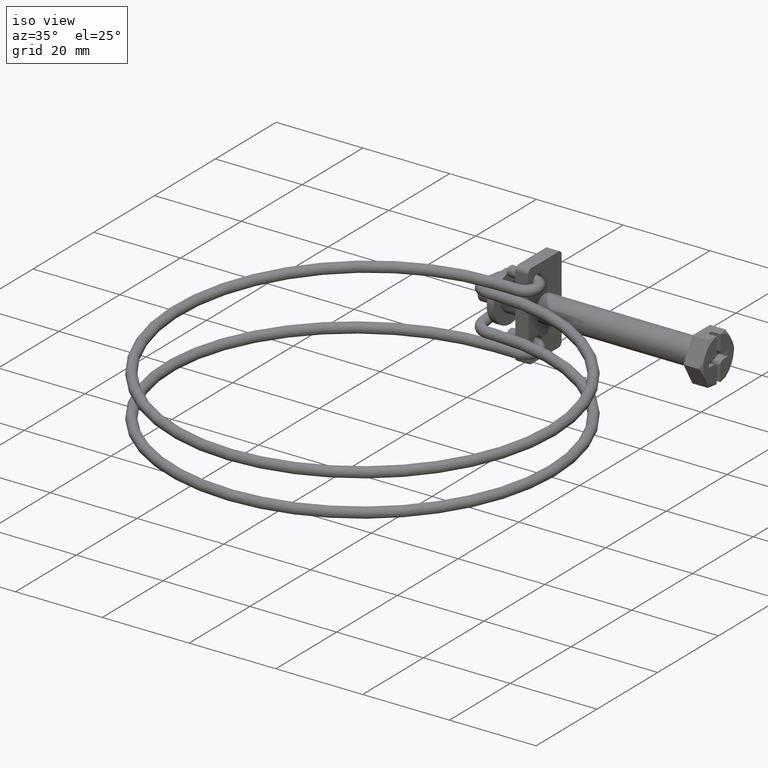
[diagram: clean part render]
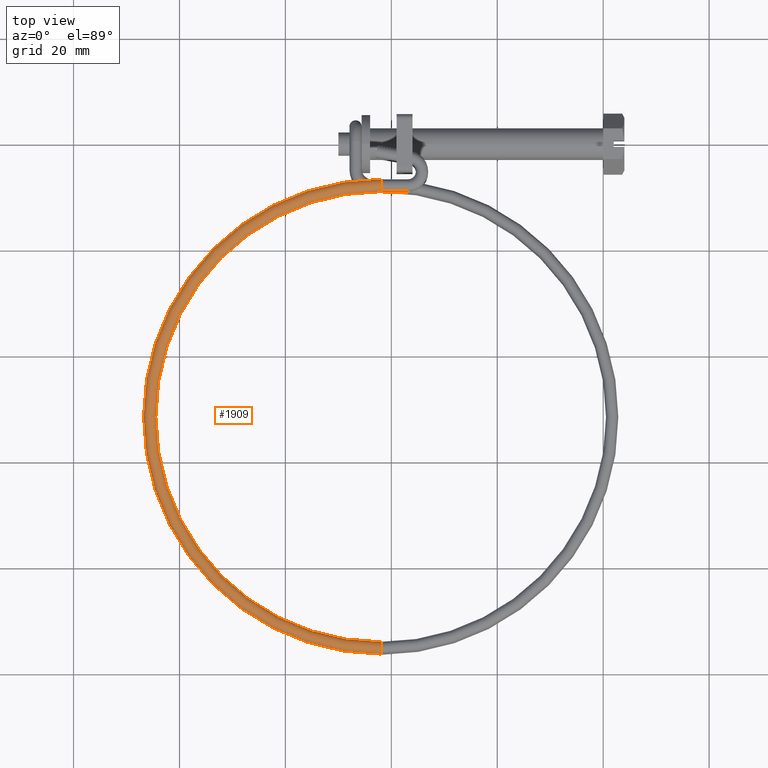
[diagram: tour spotlight — one face highlighted and labeled with its STEP entity id]
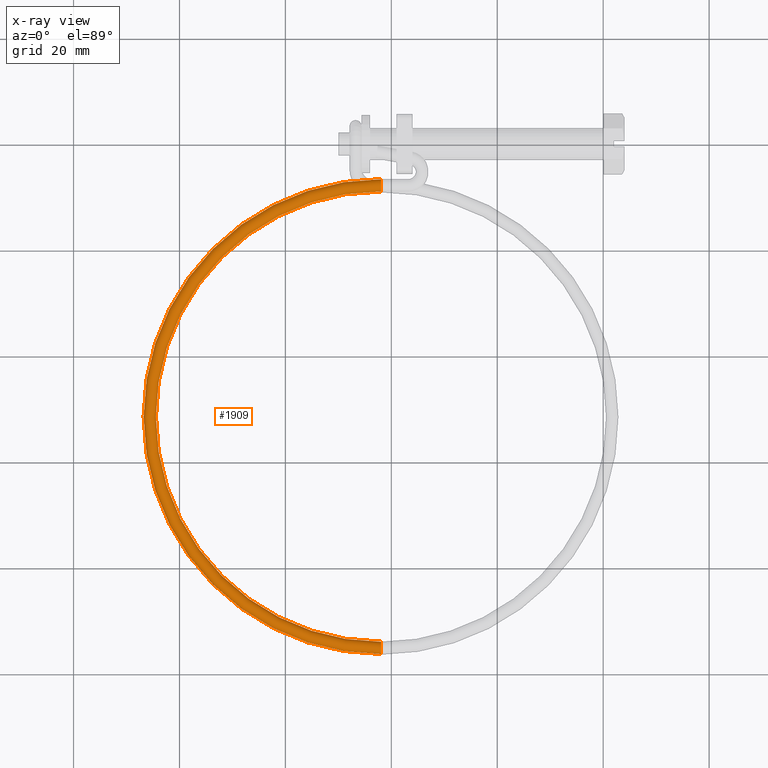
[diagram: x-ray of the same camera — body ghosted, this tour face saturated]
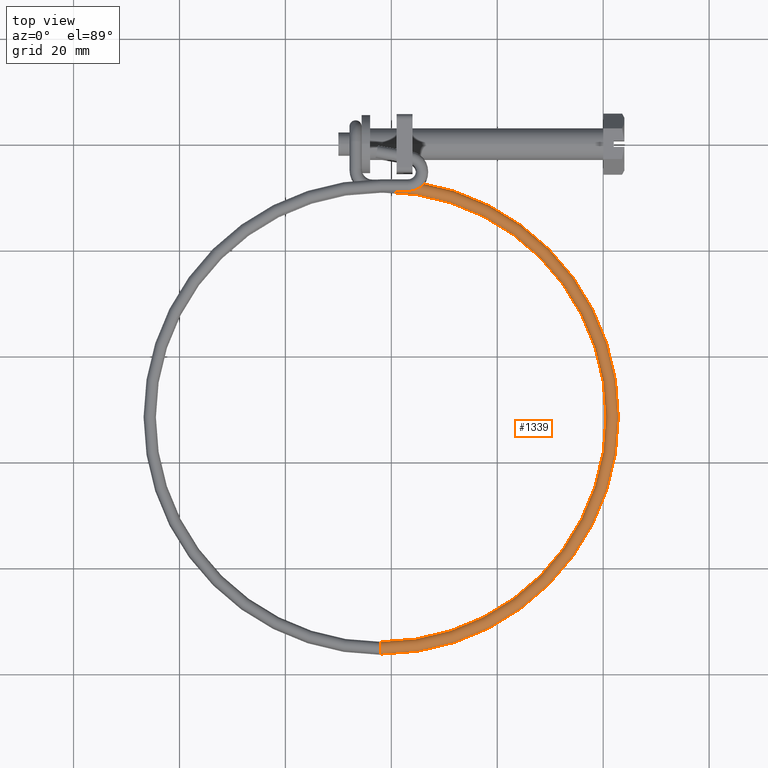
[diagram: tour spotlight — one face highlighted and labeled with its STEP entity id]
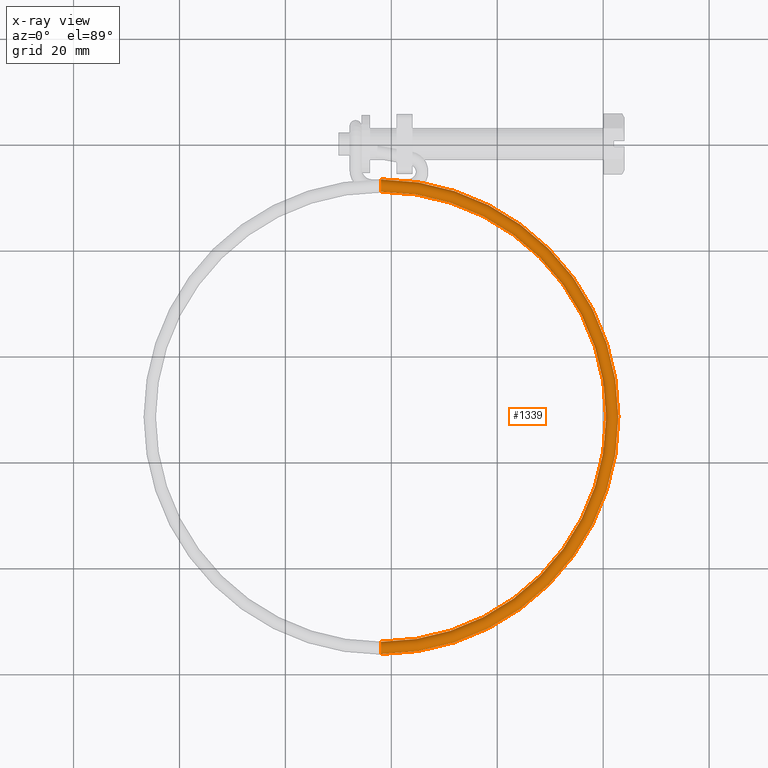
[diagram: x-ray of the same camera — body ghosted, this tour face saturated]
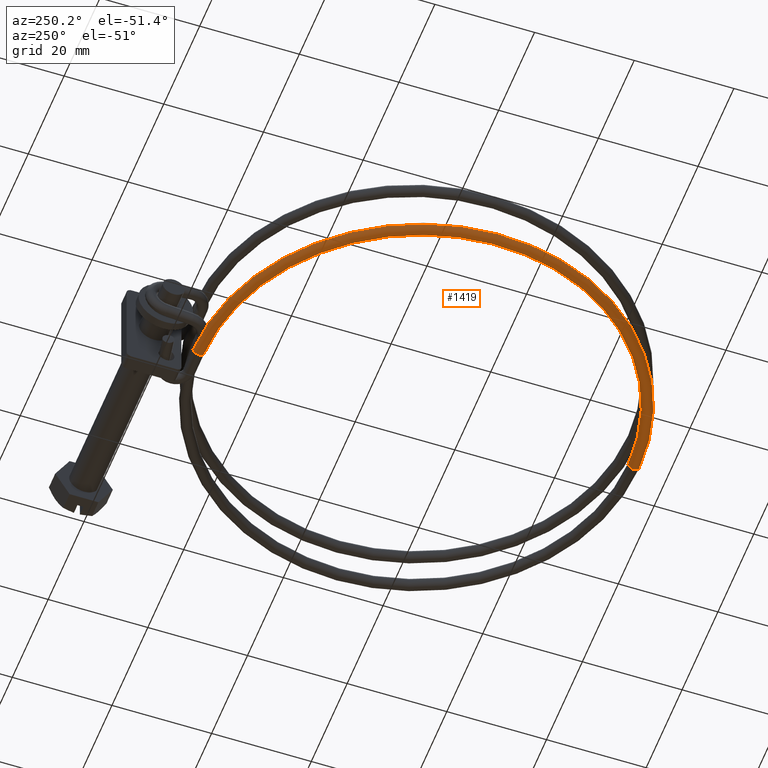
[diagram: tour spotlight — one face highlighted and labeled with its STEP entity id]
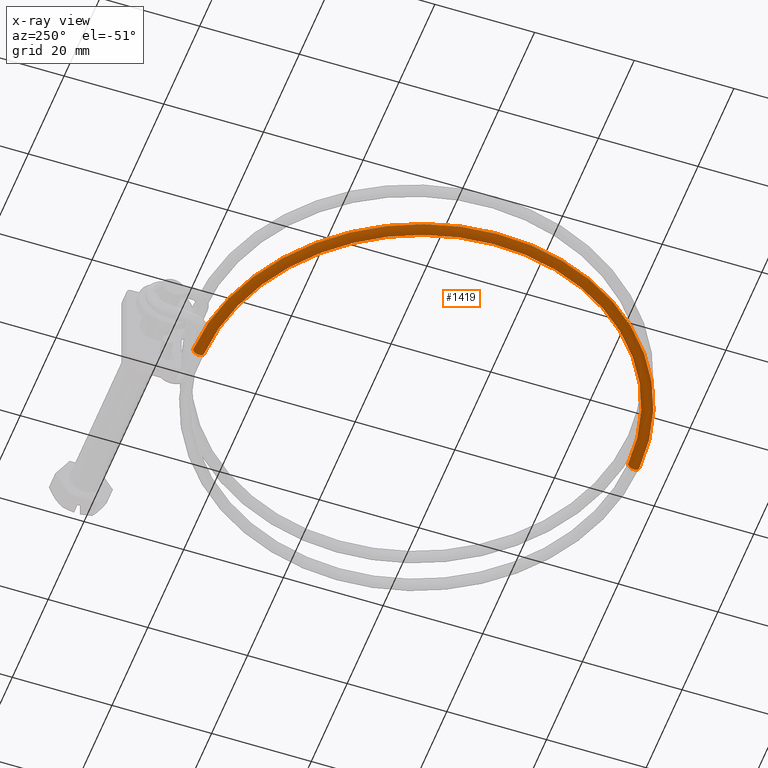
[diagram: x-ray of the same camera — body ghosted, this tour face saturated]
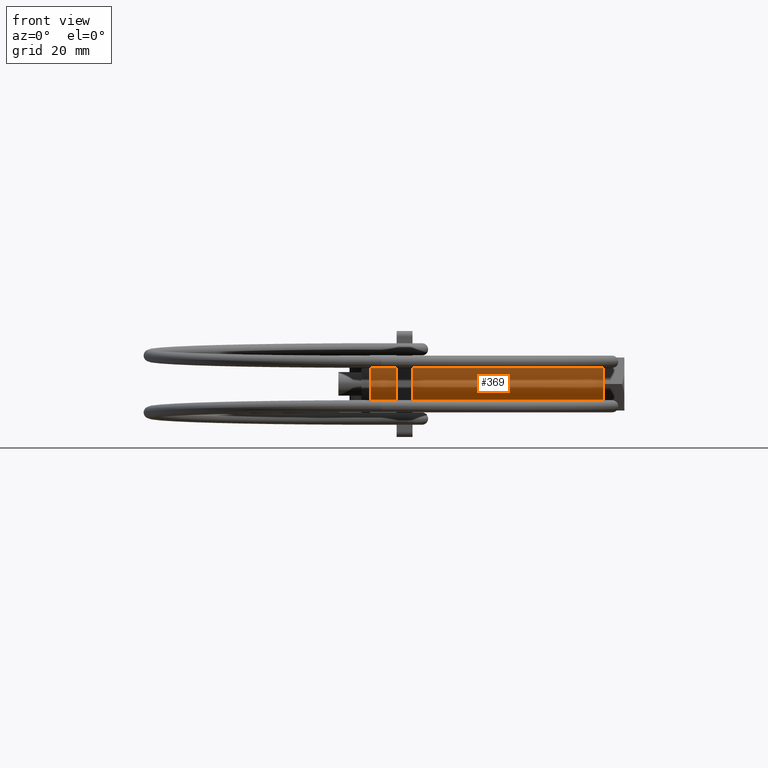
[diagram: tour spotlight — one face highlighted and labeled with its STEP entity id]
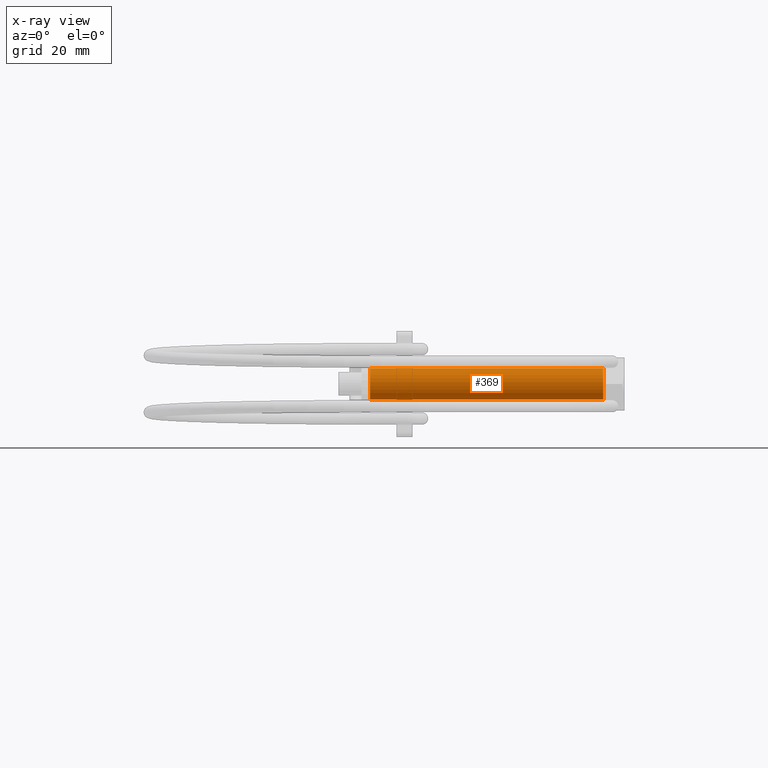
[diagram: x-ray of the same camera — body ghosted, this tour face saturated]
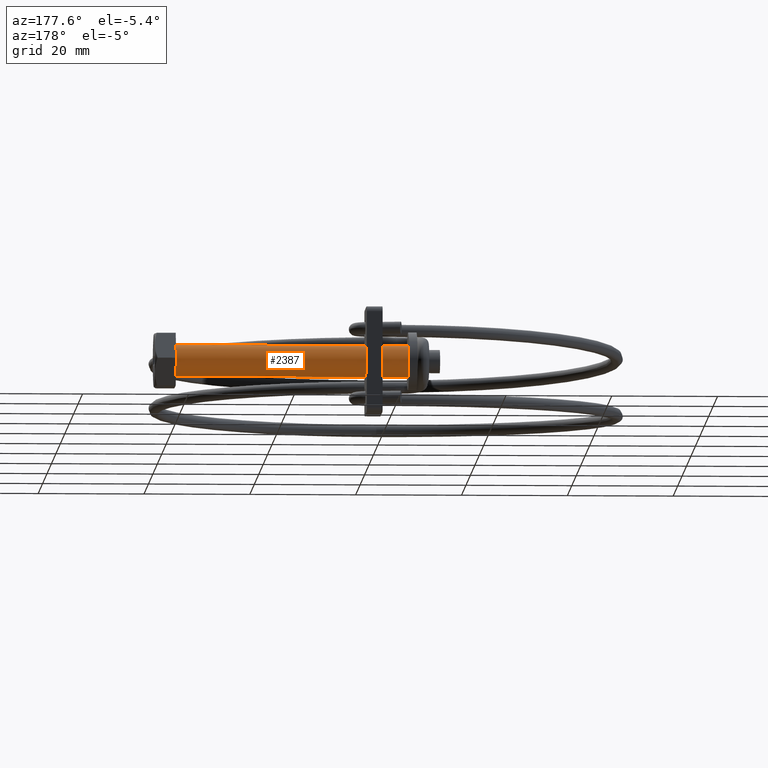
[diagram: tour spotlight — one face highlighted and labeled with its STEP entity id]
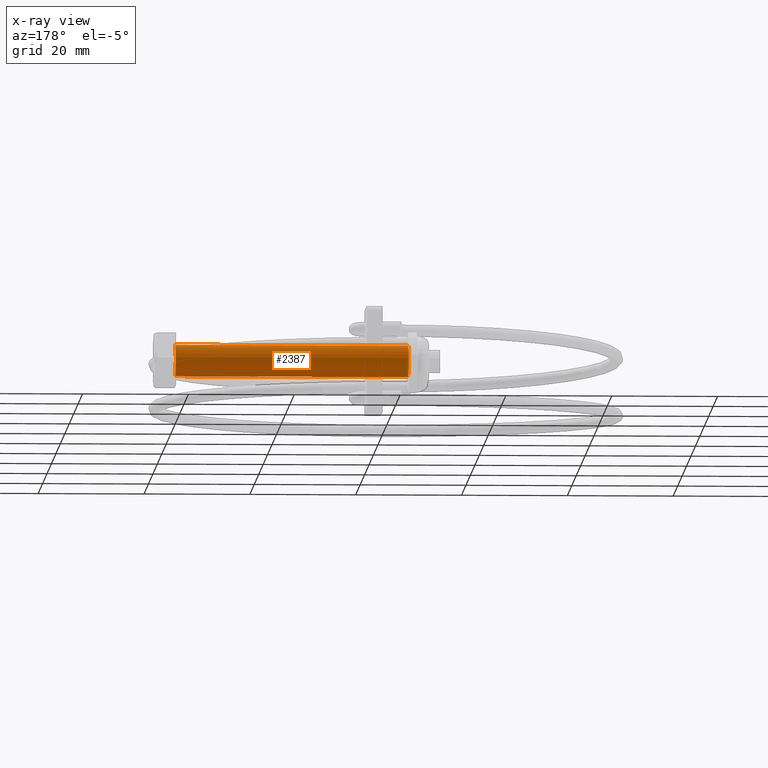
[diagram: x-ray of the same camera — body ghosted, this tour face saturated]
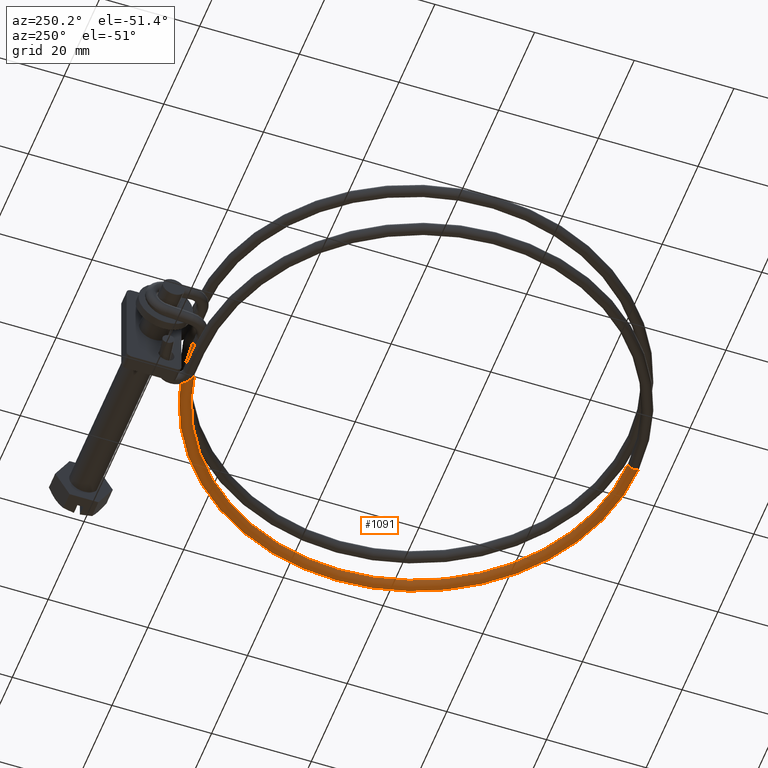
[diagram: tour spotlight — one face highlighted and labeled with its STEP entity id]
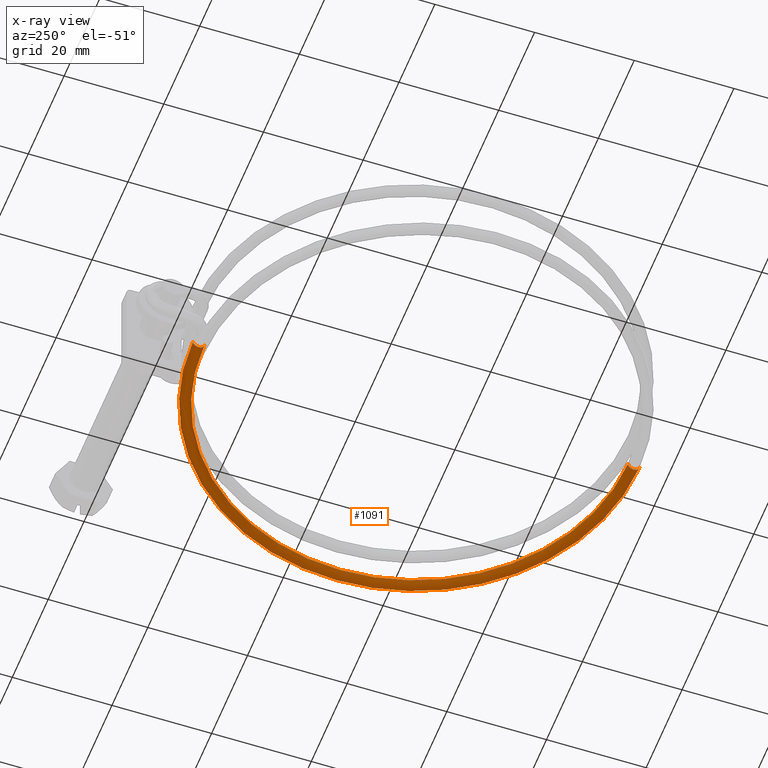
[diagram: x-ray of the same camera — body ghosted, this tour face saturated]
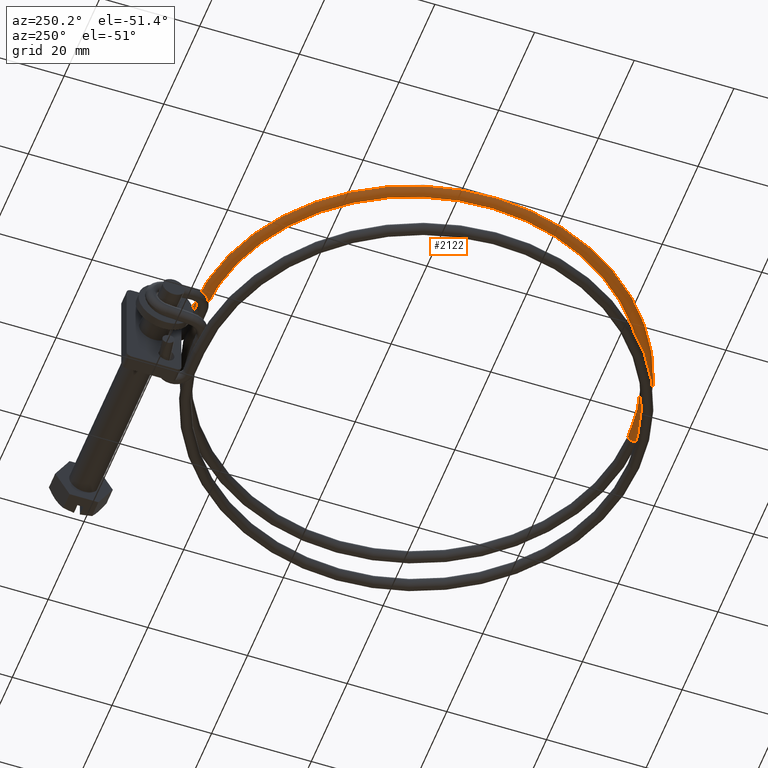
[diagram: tour spotlight — one face highlighted and labeled with its STEP entity id]
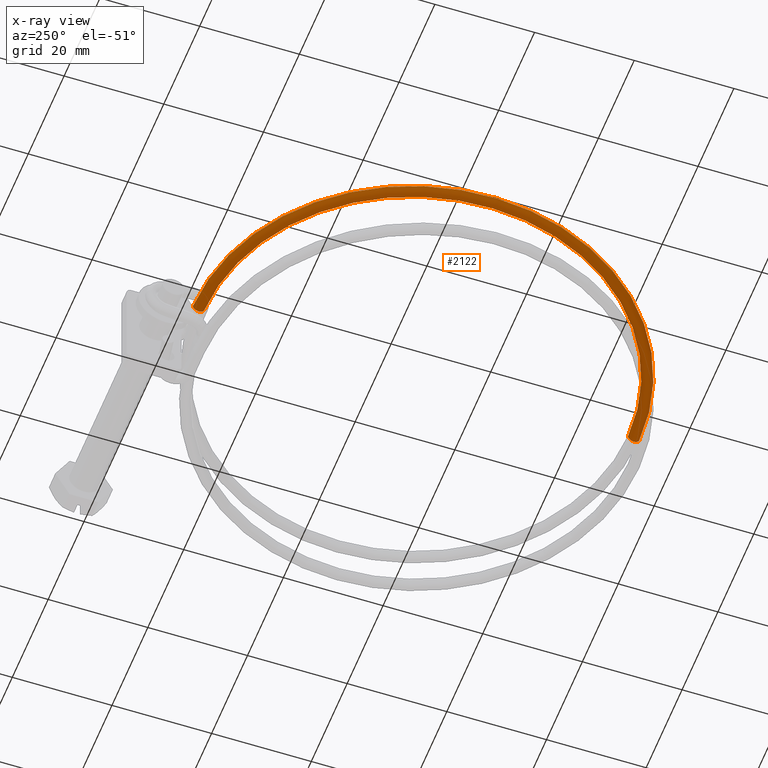
[diagram: x-ray of the same camera — body ghosted, this tour face saturated]
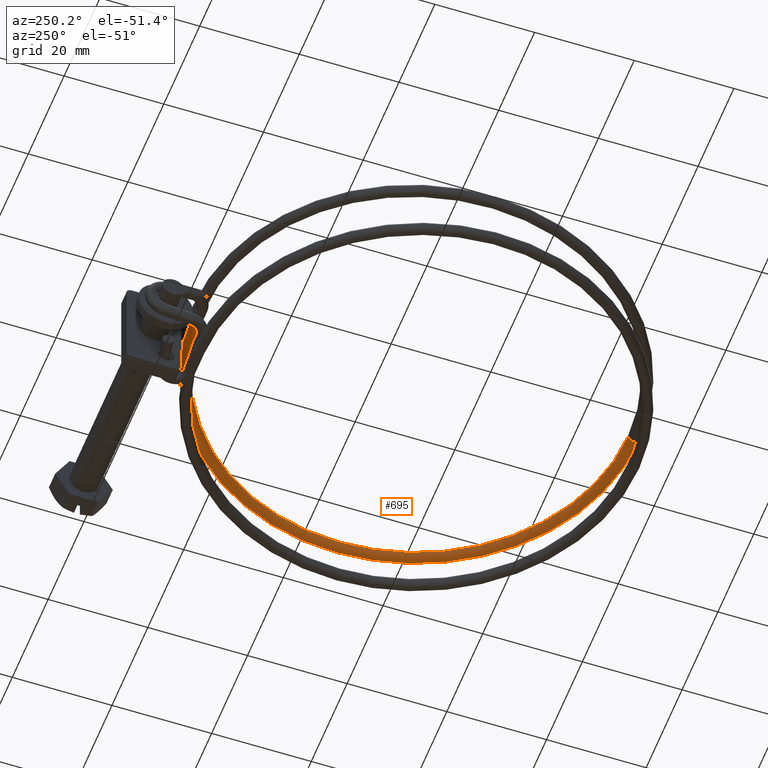
[diagram: tour spotlight — one face highlighted and labeled with its STEP entity id]
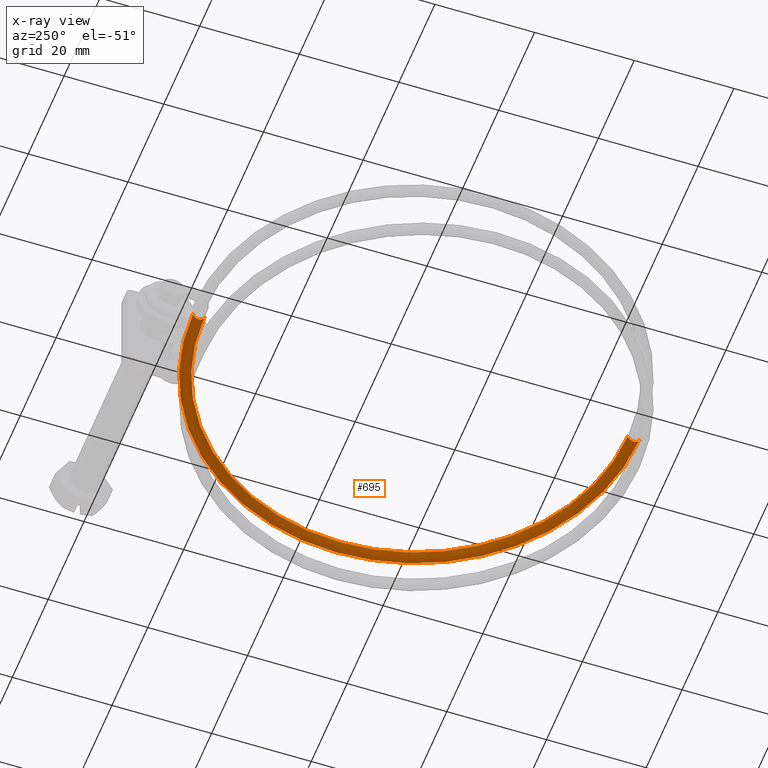
[diagram: x-ray of the same camera — body ghosted, this tour face saturated]
A machine part: a face-by-face anatomy tour. The part has 95 B-rep faces; the first image is the clean iso view, then the 8 largest visible faces are spotlighted one at a time (largest first), each with its STEP entity span.

Face 1 — top view, entity #1909. An x-ray twin of the same camera follows (body ghosted, this face saturated) — the face is partly hidden behind the body. In plain terms, the highlighted toroidal blend (fillet) surface has major radius 43.6658 mm and minor (blend) radius 1.15 mm.
Definition (entity closure, byte-faithful):
#76 = VERTEX_POINT ( 'NONE', #1070 ) ;
#77 = DIRECTION ( 'NONE',  ( 1.000000000000000000, 8.502678992173102500E-016, -7.836559837725485300E-016 ) ) ;
#78 = ORIENTED_EDGE ( 'NONE', *, *, #783, .T. ) ;
#133 = VERTEX_POINT ( 'NONE', #1367 ) ;
#217 = DIRECTION ( 'NONE',  ( 1.508455196501577500E-014, -0.9945218953682732900, -0.1045284632676544400 ) ) ;
#271 = EDGE_CURVE ( 'NONE', #1682, #76, #2416, .T. ) ;
#339 = AXIS2_PLACEMENT_3D ( 'NONE', #2774, #1304, #3021 ) ;
#349 = EDGE_CURVE ( 'NONE', #1682, #133, #1111, .T. ) ;
#563 = AXIS2_PLACEMENT_3D ( 'NONE', #3144, #1704, #217 ) ;
#626 = ORIENTED_EDGE ( 'NONE', *, *, #2870, .F. ) ;
#701 = FACE_OUTER_BOUND ( 'NONE', #2929, .T. ) ;
#734 = CIRCLE ( 'NONE', #339, 1.149999999999995500 ) ;
#765 = DIRECTION ( 'NONE',  ( -0.0000000000000000000, 0.02690892371103315400, -0.9996378893502956300 ) ) ;
#783 = EDGE_CURVE ( 'NONE', #1759, #2678, #1888, .T. ) ;
#867 = EDGE_CURVE ( 'NONE', #2881, #2678, #2392, .T. ) ;
#925 = CARTESIAN_POINT ( 'NONE',  ( 4.795899999999999600, -51.56164372549101000, 5.375000000000000900 ) ) ;
#926 = CARTESIAN_POINT ( 'NONE',  ( 4.795899999999999600, -51.56164372549101000, 5.375000000000000900 ) ) ;
#974 = ORIENTED_EDGE ( 'NONE', *, *, #3163, .T. ) ;
#1070 = CARTESIAN_POINT ( 'NONE',  ( 4.795900000000609800, -6.762060152738176700, 6.580945262267689200 ) ) ;
#1111 = CIRCLE ( 'NONE', #563, 1.149999999999995500 ) ;
#1181 = DIRECTION ( 'NONE',  ( 0.0000000000000000000, 0.9996378893502956300, 0.02690892371103315400 ) ) ;
#1183 = DIRECTION ( 'NONE',  ( 0.0000000000000000000, 0.9996378893502956300, 0.02690892371103315000 ) ) ;
#1304 = DIRECTION ( 'NONE',  ( -1.000000000000000000, -1.489016563090529400E-014, -1.207367539279857700E-015 ) ) ;
#1359 = TOROIDAL_SURFACE ( 'NONE', #1435, 43.66581185550085600, 1.149999999999999900 ) ;
#1367 = CARTESIAN_POINT ( 'NONE',  ( 4.795900000000020900, -96.36164372549099300, 4.200000000000001100 ) ) ;
#1378 = CARTESIAN_POINT ( 'NONE',  ( 4.795900000000610700, -7.911643725491010100, 6.550000000000000700 ) ) ;
#1435 = AXIS2_PLACEMENT_3D ( 'NONE', #2488, #765, #2982 ) ;
#1436 = AXIS2_PLACEMENT_3D ( 'NONE', #1378, #3093, #1629 ) ;
#1530 = CARTESIAN_POINT ( 'NONE',  ( 4.795900000000610700, -7.911643725491010100, 6.550000000000000700 ) ) ;
#1604 = AXIS2_PLACEMENT_3D ( 'NONE', #1530, #77, #1780 ) ;
#1629 = DIRECTION ( 'NONE',  ( -7.542275982507857100E-016, 0.9987051081362557900, -0.05087344083654696300 ) ) ;
#1682 = VERTEX_POINT ( 'NONE', #2449 ) ;
#1704 = DIRECTION ( 'NONE',  ( -1.000000000000000000, -1.489016563090529400E-014, -1.207367539279857700E-015 ) ) ;
#1750 = ORIENTED_EDGE ( 'NONE', *, *, #271, .F. ) ;
#1759 = VERTEX_POINT ( 'NONE', #2475 ) ;
#1780 = DIRECTION ( 'NONE',  ( -7.542275982507857100E-016, 0.9987051081362557900, -0.05087344083654696300 ) ) ;
#1854 = ORIENTED_EDGE ( 'NONE', *, *, #349, .T. ) ;
#1888 = CIRCLE ( 'NONE', #2964, 42.51581185550085700 ) ;
#1909 = ADVANCED_FACE ( 'NONE', ( #701 ), #1359, .T. ) ;
#2392 = CIRCLE ( 'NONE', #1436, 1.149999999999999900 ) ;
#2416 = CIRCLE ( 'NONE', #2934, 44.81581185550085400 ) ;
#2449 = CARTESIAN_POINT ( 'NONE',  ( 4.795900000000021800, -96.36122729824384700, 4.169054737732314400 ) ) ;
#2475 = CARTESIAN_POINT ( 'NONE',  ( 4.795899999999987200, -94.06206015273815500, 4.230945262267690400 ) ) ;
#2476 = CIRCLE ( 'NONE', #1604, 1.149999999999999900 ) ;
#2488 = CARTESIAN_POINT ( 'NONE',  ( 4.795899999999999600, -51.56164372549101000, 5.375000000000000900 ) ) ;
#2612 = ORIENTED_EDGE ( 'NONE', *, *, #867, .F. ) ;
#2634 = CARTESIAN_POINT ( 'NONE',  ( 4.795900000000611600, -9.061227298243855100, 6.519054737732312300 ) ) ;
#2650 = DIRECTION ( 'NONE',  ( -0.0000000000000000000, 0.02690892371103315400, -0.9996378893502956300 ) ) ;
#2651 = DIRECTION ( 'NONE',  ( -0.0000000000000000000, 0.02690892371103315400, -0.9996378893502956300 ) ) ;
#2678 = VERTEX_POINT ( 'NONE', #2634 ) ;
#2769 = CARTESIAN_POINT ( 'NONE',  ( 4.795900000000611600, -7.911643725491010100, 7.700000000000000200 ) ) ;
#2774 = CARTESIAN_POINT ( 'NONE',  ( 4.795900000000004900, -95.21164372549100100, 4.200000000000001100 ) ) ;
#2870 = EDGE_CURVE ( 'NONE', #76, #2881, #2476, .T. ) ;
#2881 = VERTEX_POINT ( 'NONE', #2769 ) ;
#2929 = EDGE_LOOP ( 'NONE', ( #1750, #1854, #974, #78, #2612, #626 ) ) ;
#2934 = AXIS2_PLACEMENT_3D ( 'NONE', #925, #2650, #1181 ) ;
#2964 = AXIS2_PLACEMENT_3D ( 'NONE', #926, #2651, #1183 ) ;
#2982 = DIRECTION ( 'NONE',  ( 0.0000000000000000000, 0.9996378893502956300, 0.02690892371103315000 ) ) ;
#3021 = DIRECTION ( 'NONE',  ( 1.508455196501577500E-014, -0.9945218953682732900, -0.1045284632676544400 ) ) ;
#3093 = DIRECTION ( 'NONE',  ( 1.000000000000000000, 8.502678992173102500E-016, -7.836559837725485300E-016 ) ) ;
#3144 = CARTESIAN_POINT ( 'NONE',  ( 4.795900000000004900, -95.21164372549100100, 4.200000000000001100 ) ) ;
#3163 = EDGE_CURVE ( 'NONE', #133, #1759, #734, .T. ) ;

Face 2 — top view, entity #1339. An x-ray twin of the same camera follows (body ghosted, this face saturated) — the face is partly hidden behind the body. In plain terms, the highlighted toroidal blend (fillet) surface has major radius 43.65 mm and minor (blend) radius 1.15 mm.
Definition (entity closure, byte-faithful):
#71 = AXIS2_PLACEMENT_3D ( 'NONE', #1552, #100, #1796 ) ;
#100 = DIRECTION ( 'NONE',  ( -1.000000000000000000, -1.489016563090529400E-014, -1.207367539279857700E-015 ) ) ;
#133 = VERTEX_POINT ( 'NONE', #1367 ) ;
#138 = AXIS2_PLACEMENT_3D ( 'NONE', #1856, #397, #2091 ) ;
#188 = AXIS2_PLACEMENT_3D ( 'NONE', #1273, #1257, #2993 ) ;
#262 = ORIENTED_EDGE ( 'NONE', *, *, #821, .T. ) ;
#339 = AXIS2_PLACEMENT_3D ( 'NONE', #2774, #1304, #3021 ) ;
#365 = AXIS2_PLACEMENT_3D ( 'NONE', #2591, #1119, #2833 ) ;
#397 = DIRECTION ( 'NONE',  ( 1.000000000000000000, 1.476770095099055900E-014, -1.207367539279857700E-015 ) ) ;
#530 = CARTESIAN_POINT ( 'NONE',  ( 4.795900000000000500, -7.911643725490995000, 4.200000000000001100 ) ) ;
#669 = EDGE_LOOP ( 'NONE', ( #2460, #262, #1121, #2924, #2899, #2717 ) ) ;
#734 = CIRCLE ( 'NONE', #339, 1.149999999999995500 ) ;
#770 = DIRECTION ( 'NONE',  ( -1.508455196501571800E-014, 0.9945218953682732900, -0.1045284632676540700 ) ) ;
#821 = EDGE_CURVE ( 'NONE', #2747, #1159, #1814, .T. ) ;
#875 = CARTESIAN_POINT ( 'NONE',  ( 4.795899999999999600, -51.56164372549099500, 4.200000000000001100 ) ) ;
#1062 = EDGE_CURVE ( 'NONE', #2103, #1941, #1261, .T. ) ;
#1119 = DIRECTION ( 'NONE',  ( -0.0000000000000000000, -0.0000000000000000000, -1.000000000000000000 ) ) ;
#1121 = ORIENTED_EDGE ( 'NONE', *, *, #1798, .T. ) ;
#1129 = DIRECTION ( 'NONE',  ( -1.000000000000000000, 0.0000000000000000000, 0.0000000000000000000 ) ) ;
#1159 = VERTEX_POINT ( 'NONE', #2018 ) ;
#1164 = EDGE_CURVE ( 'NONE', #1759, #1941, #2996, .T. ) ;
#1257 = DIRECTION ( 'NONE',  ( -0.0000000000000000000, -0.0000000000000000000, -1.000000000000000000 ) ) ;
#1261 = CIRCLE ( 'NONE', #1926, 42.50000000000000000 ) ;
#1273 = CARTESIAN_POINT ( 'NONE',  ( 4.795899999999999600, -51.56164372549099500, 4.200000000000001100 ) ) ;
#1286 = CARTESIAN_POINT ( 'NONE',  ( 4.795899999999987200, -94.06164372549099500, 4.200000000000001100 ) ) ;
#1304 = DIRECTION ( 'NONE',  ( -1.000000000000000000, -1.489016563090529400E-014, -1.207367539279857700E-015 ) ) ;
#1309 = TOROIDAL_SURFACE ( 'NONE', #188, 43.64999999999999900, 1.149999999999999900 ) ;
#1339 = ADVANCED_FACE ( 'NONE', ( #1721 ), #1309, .T. ) ;
#1367 = CARTESIAN_POINT ( 'NONE',  ( 4.795900000000020900, -96.36164372549099300, 4.200000000000001100 ) ) ;
#1552 = CARTESIAN_POINT ( 'NONE',  ( 4.795900000000004900, -95.21164372549100100, 4.200000000000001100 ) ) ;
#1587 = CIRCLE ( 'NONE', #2641, 1.149999999999999700 ) ;
#1721 = FACE_OUTER_BOUND ( 'NONE', #669, .T. ) ;
#1759 = VERTEX_POINT ( 'NONE', #2475 ) ;
#1796 = DIRECTION ( 'NONE',  ( 1.508455196501577500E-014, -0.9945218953682732900, -0.1045284632676544400 ) ) ;
#1798 = EDGE_CURVE ( 'NONE', #1159, #2103, #1587, .T. ) ;
#1814 = CIRCLE ( 'NONE', #138, 1.149999999999999700 ) ;
#1856 = CARTESIAN_POINT ( 'NONE',  ( 4.795900000000000500, -7.911643725490995000, 4.200000000000001100 ) ) ;
#1926 = AXIS2_PLACEMENT_3D ( 'NONE', #875, #2596, #1129 ) ;
#1941 = VERTEX_POINT ( 'NONE', #1286 ) ;
#2018 = CARTESIAN_POINT ( 'NONE',  ( 4.795900000000002300, -7.911643725490995000, 5.350000000000001400 ) ) ;
#2020 = CARTESIAN_POINT ( 'NONE',  ( 4.795900000000018300, -9.061643725490995400, 4.200000000000001100 ) ) ;
#2091 = DIRECTION ( 'NONE',  ( -1.508455196501571800E-014, 0.9945218953682732900, -0.1045284632676540700 ) ) ;
#2103 = VERTEX_POINT ( 'NONE', #2020 ) ;
#2237 = DIRECTION ( 'NONE',  ( 1.000000000000000000, 1.476770095099055900E-014, -1.207367539279857700E-015 ) ) ;
#2421 = CARTESIAN_POINT ( 'NONE',  ( 4.795899999999982700, -6.761643725490996500, 4.200000000000001100 ) ) ;
#2460 = ORIENTED_EDGE ( 'NONE', *, *, #2559, .F. ) ;
#2475 = CARTESIAN_POINT ( 'NONE',  ( 4.795899999999987200, -94.06206015273815500, 4.230945262267690400 ) ) ;
#2559 = EDGE_CURVE ( 'NONE', #2747, #133, #2601, .T. ) ;
#2591 = CARTESIAN_POINT ( 'NONE',  ( 4.795899999999999600, -51.56164372549099500, 4.200000000000001100 ) ) ;
#2596 = DIRECTION ( 'NONE',  ( -0.0000000000000000000, -0.0000000000000000000, -1.000000000000000000 ) ) ;
#2601 = CIRCLE ( 'NONE', #365, 44.79999999999999700 ) ;
#2641 = AXIS2_PLACEMENT_3D ( 'NONE', #530, #2237, #770 ) ;
#2717 = ORIENTED_EDGE ( 'NONE', *, *, #3163, .F. ) ;
#2747 = VERTEX_POINT ( 'NONE', #2421 ) ;
#2774 = CARTESIAN_POINT ( 'NONE',  ( 4.795900000000004900, -95.21164372549100100, 4.200000000000001100 ) ) ;
#2833 = DIRECTION ( 'NONE',  ( -1.000000000000000000, 0.0000000000000000000, 0.0000000000000000000 ) ) ;
#2899 = ORIENTED_EDGE ( 'NONE', *, *, #1164, .F. ) ;
#2924 = ORIENTED_EDGE ( 'NONE', *, *, #1062, .T. ) ;
#2993 = DIRECTION ( 'NONE',  ( -1.000000000000000000, 0.0000000000000000000, 0.0000000000000000000 ) ) ;
#2996 = CIRCLE ( 'NONE', #71, 1.149999999999995500 ) ;
#3021 = DIRECTION ( 'NONE',  ( 1.508455196501577500E-014, -0.9945218953682732900, -0.1045284632676544400 ) ) ;
#3163 = EDGE_CURVE ( 'NONE', #133, #1759, #734, .T. ) ;

Face 3 — auxiliary view, entity #1419. An x-ray twin of the same camera follows (body ghosted, this face saturated) — the face is partly hidden behind the body. In plain terms, the highlighted toroidal blend (fillet) surface has major radius 43.6658 mm and minor (blend) radius 1.15 mm.
Definition (entity closure, byte-faithful):
#2 = AXIS2_PLACEMENT_3D ( 'NONE', #2212, #743, #2473 ) ;
#61 = AXIS2_PLACEMENT_3D ( 'NONE', #1067, #2788, #1320 ) ;
#82 = AXIS2_PLACEMENT_3D ( 'NONE', #1666, #216, #1913 ) ;
#93 = CARTESIAN_POINT ( 'NONE',  ( 4.795899999999999600, -51.56164372549101000, -5.375000000000000900 ) ) ;
#216 = DIRECTION ( 'NONE',  ( 1.000000000000000000, 1.489016563090529400E-014, -1.207367539279857700E-015 ) ) ;
#246 = CARTESIAN_POINT ( 'NONE',  ( 4.795900000000611600, -9.061227298243855100, -6.519054737732312300 ) ) ;
#274 = VERTEX_POINT ( 'NONE', #2151 ) ;
#280 = EDGE_CURVE ( 'NONE', #2587, #2522, #3070, .T. ) ;
#379 = CARTESIAN_POINT ( 'NONE',  ( 4.795899999999999600, -51.56164372549101000, -5.375000000000000900 ) ) ;
#517 = CARTESIAN_POINT ( 'NONE',  ( 4.795899999999987200, -94.06206015273815500, -4.230945262267690400 ) ) ;
#620 = DIRECTION ( 'NONE',  ( 0.0000000000000000000, 0.9996378893502956300, -0.02690892371103315400 ) ) ;
#637 = ORIENTED_EDGE ( 'NONE', *, *, #2125, .T. ) ;
#670 = AXIS2_PLACEMENT_3D ( 'NONE', #93, #1296, #1531 ) ;
#743 = DIRECTION ( 'NONE',  ( 1.000000000000000000, 1.489016563090529400E-014, -1.207367539279857700E-015 ) ) ;
#841 = DIRECTION ( 'NONE',  ( -1.000000000000000000, -8.502678992173102500E-016, -7.836559837725485300E-016 ) ) ;
#917 = FACE_OUTER_BOUND ( 'NONE', #985, .T. ) ;
#940 = AXIS2_PLACEMENT_3D ( 'NONE', #379, #2074, #620 ) ;
#985 = EDGE_LOOP ( 'NONE', ( #1412, #2576, #2761, #637, #2582, #2385 ) ) ;
#1009 = EDGE_CURVE ( 'NONE', #2587, #2241, #2721, .T. ) ;
#1067 = CARTESIAN_POINT ( 'NONE',  ( 4.795900000000610700, -7.911643725491010100, -6.550000000000000700 ) ) ;
#1185 = DIRECTION ( 'NONE',  ( -0.0000000000000000000, -0.02690892371103315400, -0.9996378893502956300 ) ) ;
#1208 = AXIS2_PLACEMENT_3D ( 'NONE', #2318, #841, #2568 ) ;
#1296 = DIRECTION ( 'NONE',  ( -0.0000000000000000000, -0.02690892371103315400, -0.9996378893502956300 ) ) ;
#1320 = DIRECTION ( 'NONE',  ( -7.542275982507857100E-016, 0.9987051081362557900, 0.05087344083654696300 ) ) ;
#1334 = CARTESIAN_POINT ( 'NONE',  ( 4.795900000000020900, -96.36164372549099300, -4.200000000000001100 ) ) ;
#1412 = ORIENTED_EDGE ( 'NONE', *, *, #280, .F. ) ;
#1419 = ADVANCED_FACE ( 'NONE', ( #917 ), #1582, .T. ) ;
#1465 = CIRCLE ( 'NONE', #61, 1.149999999999999900 ) ;
#1531 = DIRECTION ( 'NONE',  ( 0.0000000000000000000, 0.9996378893502956300, -0.02690892371103315000 ) ) ;
#1582 = TOROIDAL_SURFACE ( 'NONE', #670, 43.66581185550085600, 1.149999999999999900 ) ;
#1666 = CARTESIAN_POINT ( 'NONE',  ( 4.795900000000004900, -95.21164372549100100, -4.200000000000001100 ) ) ;
#1792 = VERTEX_POINT ( 'NONE', #517 ) ;
#1913 = DIRECTION ( 'NONE',  ( 1.508455196501577500E-014, -0.9945218953682732900, 0.1045284632676544400 ) ) ;
#1946 = CIRCLE ( 'NONE', #1208, 1.149999999999999900 ) ;
#2074 = DIRECTION ( 'NONE',  ( -0.0000000000000000000, -0.02690892371103315400, -0.9996378893502956300 ) ) ;
#2096 = CARTESIAN_POINT ( 'NONE',  ( 4.795900000000021800, -96.36122729824384700, -4.169054737732314400 ) ) ;
#2125 = EDGE_CURVE ( 'NONE', #274, #2985, #1465, .T. ) ;
#2132 = CIRCLE ( 'NONE', #2, 1.149999999999995500 ) ;
#2151 = CARTESIAN_POINT ( 'NONE',  ( 4.795900000000611600, -7.911643725491010100, -7.700000000000000200 ) ) ;
#2162 = EDGE_CURVE ( 'NONE', #2241, #274, #1946, .T. ) ;
#2196 = CIRCLE ( 'NONE', #2323, 42.51581185550085700 ) ;
#2212 = CARTESIAN_POINT ( 'NONE',  ( 4.795900000000004900, -95.21164372549100100, -4.200000000000001100 ) ) ;
#2241 = VERTEX_POINT ( 'NONE', #2350 ) ;
#2318 = CARTESIAN_POINT ( 'NONE',  ( 4.795900000000610700, -7.911643725491010100, -6.550000000000000700 ) ) ;
#2323 = AXIS2_PLACEMENT_3D ( 'NONE', #2655, #1185, #2904 ) ;
#2340 = EDGE_CURVE ( 'NONE', #2522, #1792, #2132, .T. ) ;
#2350 = CARTESIAN_POINT ( 'NONE',  ( 4.795900000000609800, -6.762060152738176700, -6.580945262267689200 ) ) ;
#2385 = ORIENTED_EDGE ( 'NONE', *, *, #2340, .F. ) ;
#2473 = DIRECTION ( 'NONE',  ( 1.508455196501577500E-014, -0.9945218953682732900, 0.1045284632676544400 ) ) ;
#2522 = VERTEX_POINT ( 'NONE', #1334 ) ;
#2568 = DIRECTION ( 'NONE',  ( -7.542275982507857100E-016, 0.9987051081362557900, 0.05087344083654696300 ) ) ;
#2576 = ORIENTED_EDGE ( 'NONE', *, *, #1009, .T. ) ;
#2582 = ORIENTED_EDGE ( 'NONE', *, *, #2694, .F. ) ;
#2587 = VERTEX_POINT ( 'NONE', #2096 ) ;
#2655 = CARTESIAN_POINT ( 'NONE',  ( 4.795899999999999600, -51.56164372549101000, -5.375000000000000900 ) ) ;
#2694 = EDGE_CURVE ( 'NONE', #1792, #2985, #2196, .T. ) ;
#2721 = CIRCLE ( 'NONE', #940, 44.81581185550085400 ) ;
#2761 = ORIENTED_EDGE ( 'NONE', *, *, #2162, .T. ) ;
#2788 = DIRECTION ( 'NONE',  ( -1.000000000000000000, -8.502678992173102500E-016, -7.836559837725485300E-016 ) ) ;
#2904 = DIRECTION ( 'NONE',  ( 0.0000000000000000000, 0.9996378893502956300, -0.02690892371103315000 ) ) ;
#2985 = VERTEX_POINT ( 'NONE', #246 ) ;
#3070 = CIRCLE ( 'NONE', #82, 1.149999999999995500 ) ;

Face 4 — front view, entity #369. An x-ray twin of the same camera follows (body ghosted, this face saturated) — the face is partly hidden behind the body. In plain terms, the highlighted cylindrical surface (edge-blend (fillet) strip) has radius 3 mm, axis along (1, 0, 0).
Definition (entity closure, byte-faithful):
#49 = DIRECTION ( 'NONE',  ( 1.000000000000000000, 0.0000000000000000000, 0.0000000000000000000 ) ) ;
#56 = EDGE_LOOP ( 'NONE', ( #2393, #2104, #2200, #445 ) ) ;
#293 = CIRCLE ( 'NONE', #2702, 3.000000000000000400 ) ;
#341 = AXIS2_PLACEMENT_3D ( 'NONE', #794, #2521, #1045 ) ;
#366 = CIRCLE ( 'NONE', #341, 3.000000000000000400 ) ;
#369 = ADVANCED_FACE ( 'NONE', ( #2918 ), #948, .T. ) ;
#381 = DIRECTION ( 'NONE',  ( 1.000000000000000000, -0.0000000000000000000, -0.0000000000000000000 ) ) ;
#411 = LINE ( 'NONE', #1747, #2262 ) ;
#426 = CARTESIAN_POINT ( 'NONE',  ( 0.0000000000000000000, 0.0000000000000000000, -3.000000000000000400 ) ) ;
#445 = ORIENTED_EDGE ( 'NONE', *, *, #1403, .F. ) ;
#662 = VERTEX_POINT ( 'NONE', #1727 ) ;
#794 = CARTESIAN_POINT ( 'NONE',  ( 0.0000000000000000000, 0.0000000000000000000, 0.0000000000000000000 ) ) ;
#933 = DIRECTION ( 'NONE',  ( 1.000000000000000000, 0.0000000000000000000, 0.0000000000000000000 ) ) ;
#948 = CYLINDRICAL_SURFACE ( 'NONE', #1551, 3.000000000000000400 ) ;
#1045 = DIRECTION ( 'NONE',  ( 0.0000000000000000000, 0.0000000000000000000, -1.000000000000000000 ) ) ;
#1313 = CARTESIAN_POINT ( 'NONE',  ( -44.00000000000000000, 0.0000000000000000000, -3.000000000000000400 ) ) ;
#1403 = EDGE_CURVE ( 'NONE', #662, #2640, #366, .T. ) ;
#1416 = CARTESIAN_POINT ( 'NONE',  ( -44.00000000000000000, 0.0000000000000000000, 0.0000000000000000000 ) ) ;
#1551 = AXIS2_PLACEMENT_3D ( 'NONE', #1416, #2403, #3131 ) ;
#1650 = VERTEX_POINT ( 'NONE', #2514 ) ;
#1727 = CARTESIAN_POINT ( 'NONE',  ( 0.0000000000000000000, 3.673940397442060400E-016, 3.000000000000000400 ) ) ;
#1747 = CARTESIAN_POINT ( 'NONE',  ( -44.00000000000000000, 3.673940397442060400E-016, 3.000000000000000400 ) ) ;
#1837 = CARTESIAN_POINT ( 'NONE',  ( -44.00000000000000000, 0.0000000000000000000, 0.0000000000000000000 ) ) ;
#2034 = EDGE_CURVE ( 'NONE', #1650, #662, #411, .T. ) ;
#2076 = DIRECTION ( 'NONE',  ( 0.0000000000000000000, 0.0000000000000000000, 1.000000000000000000 ) ) ;
#2104 = ORIENTED_EDGE ( 'NONE', *, *, #2539, .T. ) ;
#2200 = ORIENTED_EDGE ( 'NONE', *, *, #2723, .T. ) ;
#2262 = VECTOR ( 'NONE', #49, 1000.000000000000000 ) ;
#2393 = ORIENTED_EDGE ( 'NONE', *, *, #2034, .F. ) ;
#2403 = DIRECTION ( 'NONE',  ( 1.000000000000000000, 0.0000000000000000000, 0.0000000000000000000 ) ) ;
#2407 = CARTESIAN_POINT ( 'NONE',  ( -44.00000000000000000, 0.0000000000000000000, -3.000000000000000400 ) ) ;
#2514 = CARTESIAN_POINT ( 'NONE',  ( -44.00000000000000000, 3.673940397442060400E-016, 3.000000000000000400 ) ) ;
#2521 = DIRECTION ( 'NONE',  ( 1.000000000000000000, 0.0000000000000000000, 0.0000000000000000000 ) ) ;
#2539 = EDGE_CURVE ( 'NONE', #1650, #2947, #293, .T. ) ;
#2640 = VERTEX_POINT ( 'NONE', #426 ) ;
#2702 = AXIS2_PLACEMENT_3D ( 'NONE', #1837, #381, #2076 ) ;
#2723 = EDGE_CURVE ( 'NONE', #2947, #2640, #2868, .T. ) ;
#2787 = VECTOR ( 'NONE', #933, 1000.000000000000000 ) ;
#2868 = LINE ( 'NONE', #2407, #2787 ) ;
#2918 = FACE_OUTER_BOUND ( 'NONE', #56, .T. ) ;
#2947 = VERTEX_POINT ( 'NONE', #1313 ) ;
#3131 = DIRECTION ( 'NONE',  ( 0.0000000000000000000, 0.0000000000000000000, -1.000000000000000000 ) ) ;

Face 5 — auxiliary view, entity #2387. An x-ray twin of the same camera follows (body ghosted, this face saturated) — the face is partly hidden behind the body. In plain terms, the highlighted cylindrical surface (edge-blend (fillet) strip) has radius 3 mm, axis along (1, 0, 0).
Definition (entity closure, byte-faithful):
#49 = DIRECTION ( 'NONE',  ( 1.000000000000000000, 0.0000000000000000000, 0.0000000000000000000 ) ) ;
#146 = CIRCLE ( 'NONE', #1267, 3.000000000000000400 ) ;
#152 = CARTESIAN_POINT ( 'NONE',  ( -44.00000000000000000, 0.0000000000000000000, 0.0000000000000000000 ) ) ;
#389 = DIRECTION ( 'NONE',  ( 0.0000000000000000000, 0.0000000000000000000, 1.000000000000000000 ) ) ;
#411 = LINE ( 'NONE', #1747, #2262 ) ;
#426 = CARTESIAN_POINT ( 'NONE',  ( 0.0000000000000000000, 0.0000000000000000000, -3.000000000000000400 ) ) ;
#528 = CARTESIAN_POINT ( 'NONE',  ( -44.00000000000000000, 0.0000000000000000000, 0.0000000000000000000 ) ) ;
#576 = ORIENTED_EDGE ( 'NONE', *, *, #1024, .T. ) ;
#659 = EDGE_LOOP ( 'NONE', ( #576, #2836, #880, #2296 ) ) ;
#662 = VERTEX_POINT ( 'NONE', #1727 ) ;
#880 = ORIENTED_EDGE ( 'NONE', *, *, #2030, .F. ) ;
#933 = DIRECTION ( 'NONE',  ( 1.000000000000000000, 0.0000000000000000000, 0.0000000000000000000 ) ) ;
#1006 = CYLINDRICAL_SURFACE ( 'NONE', #1402, 3.000000000000000400 ) ;
#1012 = CARTESIAN_POINT ( 'NONE',  ( 0.0000000000000000000, 0.0000000000000000000, 0.0000000000000000000 ) ) ;
#1024 = EDGE_CURVE ( 'NONE', #2947, #1650, #146, .T. ) ;
#1267 = AXIS2_PLACEMENT_3D ( 'NONE', #152, #1849, #389 ) ;
#1268 = DIRECTION ( 'NONE',  ( 0.0000000000000000000, 0.0000000000000000000, -1.000000000000000000 ) ) ;
#1313 = CARTESIAN_POINT ( 'NONE',  ( -44.00000000000000000, 0.0000000000000000000, -3.000000000000000400 ) ) ;
#1402 = AXIS2_PLACEMENT_3D ( 'NONE', #528, #2236, #2715 ) ;
#1650 = VERTEX_POINT ( 'NONE', #2514 ) ;
#1727 = CARTESIAN_POINT ( 'NONE',  ( 0.0000000000000000000, 3.673940397442060400E-016, 3.000000000000000400 ) ) ;
#1747 = CARTESIAN_POINT ( 'NONE',  ( -44.00000000000000000, 3.673940397442060400E-016, 3.000000000000000400 ) ) ;
#1768 = CIRCLE ( 'NONE', #2418, 3.000000000000000400 ) ;
#1849 = DIRECTION ( 'NONE',  ( 1.000000000000000000, -0.0000000000000000000, -0.0000000000000000000 ) ) ;
#2030 = EDGE_CURVE ( 'NONE', #2640, #662, #1768, .T. ) ;
#2034 = EDGE_CURVE ( 'NONE', #1650, #662, #411, .T. ) ;
#2236 = DIRECTION ( 'NONE',  ( 1.000000000000000000, 0.0000000000000000000, 0.0000000000000000000 ) ) ;
#2262 = VECTOR ( 'NONE', #49, 1000.000000000000000 ) ;
#2296 = ORIENTED_EDGE ( 'NONE', *, *, #2723, .F. ) ;
#2387 = ADVANCED_FACE ( 'NONE', ( #2973 ), #1006, .T. ) ;
#2407 = CARTESIAN_POINT ( 'NONE',  ( -44.00000000000000000, 0.0000000000000000000, -3.000000000000000400 ) ) ;
#2418 = AXIS2_PLACEMENT_3D ( 'NONE', #1012, #2738, #1268 ) ;
#2514 = CARTESIAN_POINT ( 'NONE',  ( -44.00000000000000000, 3.673940397442060400E-016, 3.000000000000000400 ) ) ;
#2640 = VERTEX_POINT ( 'NONE', #426 ) ;
#2715 = DIRECTION ( 'NONE',  ( 0.0000000000000000000, 0.0000000000000000000, -1.000000000000000000 ) ) ;
#2723 = EDGE_CURVE ( 'NONE', #2947, #2640, #2868, .T. ) ;
#2738 = DIRECTION ( 'NONE',  ( 1.000000000000000000, 0.0000000000000000000, 0.0000000000000000000 ) ) ;
#2787 = VECTOR ( 'NONE', #933, 1000.000000000000000 ) ;
#2836 = ORIENTED_EDGE ( 'NONE', *, *, #2034, .T. ) ;
#2868 = LINE ( 'NONE', #2407, #2787 ) ;
#2947 = VERTEX_POINT ( 'NONE', #1313 ) ;
#2973 = FACE_OUTER_BOUND ( 'NONE', #659, .T. ) ;

Face 6 — auxiliary view, entity #1091. An x-ray twin of the same camera follows (body ghosted, this face saturated) — the face is partly hidden behind the body. In plain terms, the highlighted toroidal blend (fillet) surface has major radius 43.65 mm and minor (blend) radius 1.15 mm.
Definition (entity closure, byte-faithful):
#2 = AXIS2_PLACEMENT_3D ( 'NONE', #2212, #743, #2473 ) ;
#57 = EDGE_CURVE ( 'NONE', #1792, #688, #1646, .T. ) ;
#112 = EDGE_CURVE ( 'NONE', #628, #2522, #1484, .T. ) ;
#347 = EDGE_CURVE ( 'NONE', #1427, #363, #1016, .T. ) ;
#363 = VERTEX_POINT ( 'NONE', #1182 ) ;
#517 = CARTESIAN_POINT ( 'NONE',  ( 4.795899999999987200, -94.06206015273815500, -4.230945262267690400 ) ) ;
#625 = EDGE_CURVE ( 'NONE', #363, #688, #1033, .T. ) ;
#628 = VERTEX_POINT ( 'NONE', #2202 ) ;
#636 = DIRECTION ( 'NONE',  ( 0.0000000000000000000, 0.0000000000000000000, -1.000000000000000000 ) ) ;
#688 = VERTEX_POINT ( 'NONE', #1626 ) ;
#743 = DIRECTION ( 'NONE',  ( 1.000000000000000000, 1.489016563090529400E-014, -1.207367539279857700E-015 ) ) ;
#819 = DIRECTION ( 'NONE',  ( 1.508455196501577500E-014, -0.9945218953682732900, 0.1045284632676544400 ) ) ;
#826 = AXIS2_PLACEMENT_3D ( 'NONE', #2706, #1233, #2959 ) ;
#859 = DIRECTION ( 'NONE',  ( -1.000000000000000000, -1.476770095099055900E-014, -1.207367539279857700E-015 ) ) ;
#897 = AXIS2_PLACEMENT_3D ( 'NONE', #2789, #2777, #2319 ) ;
#1016 = CIRCLE ( 'NONE', #897, 1.149999999999999700 ) ;
#1033 = CIRCLE ( 'NONE', #826, 42.50000000000000000 ) ;
#1091 = ADVANCED_FACE ( 'NONE', ( #1853 ), #3156, .T. ) ;
#1094 = CARTESIAN_POINT ( 'NONE',  ( 4.795899999999999600, -51.56164372549099500, -4.200000000000001100 ) ) ;
#1182 = CARTESIAN_POINT ( 'NONE',  ( 4.795900000000018300, -9.061643725490995400, -4.200000000000001100 ) ) ;
#1233 = DIRECTION ( 'NONE',  ( 0.0000000000000000000, 0.0000000000000000000, -1.000000000000000000 ) ) ;
#1251 = EDGE_CURVE ( 'NONE', #628, #1427, #2766, .T. ) ;
#1334 = CARTESIAN_POINT ( 'NONE',  ( 4.795900000000020900, -96.36164372549099300, -4.200000000000001100 ) ) ;
#1372 = CARTESIAN_POINT ( 'NONE',  ( 4.795899999999999600, -51.56164372549099500, -4.200000000000001100 ) ) ;
#1427 = VERTEX_POINT ( 'NONE', #2028 ) ;
#1484 = CIRCLE ( 'NONE', #2357, 44.79999999999999700 ) ;
#1542 = AXIS2_PLACEMENT_3D ( 'NONE', #2330, #859, #2590 ) ;
#1626 = CARTESIAN_POINT ( 'NONE',  ( 4.795899999999987200, -94.06164372549099500, -4.200000000000001100 ) ) ;
#1646 = CIRCLE ( 'NONE', #1685, 1.149999999999995500 ) ;
#1685 = AXIS2_PLACEMENT_3D ( 'NONE', #2556, #2288, #819 ) ;
#1744 = ORIENTED_EDGE ( 'NONE', *, *, #112, .T. ) ;
#1792 = VERTEX_POINT ( 'NONE', #517 ) ;
#1853 = FACE_OUTER_BOUND ( 'NONE', #2109, .T. ) ;
#1862 = DIRECTION ( 'NONE',  ( -1.000000000000000000, 0.0000000000000000000, 0.0000000000000000000 ) ) ;
#2028 = CARTESIAN_POINT ( 'NONE',  ( 4.795900000000002300, -7.911643725490995000, -5.350000000000001400 ) ) ;
#2109 = EDGE_LOOP ( 'NONE', ( #3162, #1744, #3138, #3025, #2553, #2921 ) ) ;
#2132 = CIRCLE ( 'NONE', #2, 1.149999999999995500 ) ;
#2202 = CARTESIAN_POINT ( 'NONE',  ( 4.795899999999982700, -6.761643725490996500, -4.200000000000001100 ) ) ;
#2212 = CARTESIAN_POINT ( 'NONE',  ( 4.795900000000004900, -95.21164372549100100, -4.200000000000001100 ) ) ;
#2288 = DIRECTION ( 'NONE',  ( 1.000000000000000000, 1.489016563090529400E-014, -1.207367539279857700E-015 ) ) ;
#2319 = DIRECTION ( 'NONE',  ( -1.508455196501571800E-014, 0.9945218953682732900, 0.1045284632676540700 ) ) ;
#2330 = CARTESIAN_POINT ( 'NONE',  ( 4.795900000000000500, -7.911643725490995000, -4.200000000000001100 ) ) ;
#2337 = DIRECTION ( 'NONE',  ( -1.000000000000000000, 0.0000000000000000000, 0.0000000000000000000 ) ) ;
#2340 = EDGE_CURVE ( 'NONE', #2522, #1792, #2132, .T. ) ;
#2357 = AXIS2_PLACEMENT_3D ( 'NONE', #1094, #636, #2337 ) ;
#2432 = AXIS2_PLACEMENT_3D ( 'NONE', #1372, #3089, #1862 ) ;
#2473 = DIRECTION ( 'NONE',  ( 1.508455196501577500E-014, -0.9945218953682732900, 0.1045284632676544400 ) ) ;
#2522 = VERTEX_POINT ( 'NONE', #1334 ) ;
#2553 = ORIENTED_EDGE ( 'NONE', *, *, #625, .F. ) ;
#2556 = CARTESIAN_POINT ( 'NONE',  ( 4.795900000000004900, -95.21164372549100100, -4.200000000000001100 ) ) ;
#2590 = DIRECTION ( 'NONE',  ( -1.508455196501571800E-014, 0.9945218953682732900, 0.1045284632676540700 ) ) ;
#2706 = CARTESIAN_POINT ( 'NONE',  ( 4.795899999999999600, -51.56164372549099500, -4.200000000000001100 ) ) ;
#2766 = CIRCLE ( 'NONE', #1542, 1.149999999999999700 ) ;
#2777 = DIRECTION ( 'NONE',  ( -1.000000000000000000, -1.476770095099055900E-014, -1.207367539279857700E-015 ) ) ;
#2789 = CARTESIAN_POINT ( 'NONE',  ( 4.795900000000000500, -7.911643725490995000, -4.200000000000001100 ) ) ;
#2921 = ORIENTED_EDGE ( 'NONE', *, *, #347, .F. ) ;
#2959 = DIRECTION ( 'NONE',  ( -1.000000000000000000, 0.0000000000000000000, 0.0000000000000000000 ) ) ;
#3025 = ORIENTED_EDGE ( 'NONE', *, *, #57, .T. ) ;
#3089 = DIRECTION ( 'NONE',  ( 0.0000000000000000000, 0.0000000000000000000, -1.000000000000000000 ) ) ;
#3138 = ORIENTED_EDGE ( 'NONE', *, *, #2340, .T. ) ;
#3156 = TOROIDAL_SURFACE ( 'NONE', #2432, 43.64999999999999900, 1.149999999999999900 ) ;
#3162 = ORIENTED_EDGE ( 'NONE', *, *, #1251, .F. ) ;

Face 7 — auxiliary view, entity #2122. An x-ray twin of the same camera follows (body ghosted, this face saturated) — the face is partly hidden behind the body. In plain terms, the highlighted toroidal blend (fillet) surface has major radius 43.6658 mm and minor (blend) radius 1.15 mm.
Definition (entity closure, byte-faithful):
#71 = AXIS2_PLACEMENT_3D ( 'NONE', #1552, #100, #1796 ) ;
#76 = VERTEX_POINT ( 'NONE', #1070 ) ;
#100 = DIRECTION ( 'NONE',  ( -1.000000000000000000, -1.489016563090529400E-014, -1.207367539279857700E-015 ) ) ;
#102 = CARTESIAN_POINT ( 'NONE',  ( 4.795899999999999600, -51.56164372549101000, 5.375000000000000900 ) ) ;
#228 = AXIS2_PLACEMENT_3D ( 'NONE', #102, #2775, #343 ) ;
#233 = EDGE_LOOP ( 'NONE', ( #2144, #2344, #2361, #2148, #726, #1717 ) ) ;
#247 = FACE_OUTER_BOUND ( 'NONE', #233, .T. ) ;
#255 = CIRCLE ( 'NONE', #2654, 1.149999999999999900 ) ;
#271 = EDGE_CURVE ( 'NONE', #1682, #76, #2416, .T. ) ;
#343 = DIRECTION ( 'NONE',  ( 0.0000000000000000000, 0.9996378893502956300, 0.02690892371103315000 ) ) ;
#726 = ORIENTED_EDGE ( 'NONE', *, *, #2672, .F. ) ;
#783 = EDGE_CURVE ( 'NONE', #1759, #2678, #1888, .T. ) ;
#838 = AXIS2_PLACEMENT_3D ( 'NONE', #892, #2610, #1139 ) ;
#892 = CARTESIAN_POINT ( 'NONE',  ( 4.795900000000004900, -95.21164372549100100, 4.200000000000001100 ) ) ;
#925 = CARTESIAN_POINT ( 'NONE',  ( 4.795899999999999600, -51.56164372549101000, 5.375000000000000900 ) ) ;
#926 = CARTESIAN_POINT ( 'NONE',  ( 4.795899999999999600, -51.56164372549101000, 5.375000000000000900 ) ) ;
#1070 = CARTESIAN_POINT ( 'NONE',  ( 4.795900000000609800, -6.762060152738176700, 6.580945262267689200 ) ) ;
#1139 = DIRECTION ( 'NONE',  ( 1.508455196501577500E-014, -0.9945218953682732900, -0.1045284632676544400 ) ) ;
#1164 = EDGE_CURVE ( 'NONE', #1759, #1941, #2996, .T. ) ;
#1178 = CARTESIAN_POINT ( 'NONE',  ( 4.795900000000610700, -7.911643725491010100, 6.550000000000000700 ) ) ;
#1181 = DIRECTION ( 'NONE',  ( 0.0000000000000000000, 0.9996378893502956300, 0.02690892371103315400 ) ) ;
#1183 = DIRECTION ( 'NONE',  ( 0.0000000000000000000, 0.9996378893502956300, 0.02690892371103315000 ) ) ;
#1198 = DIRECTION ( 'NONE',  ( 1.000000000000000000, 8.502678992173102500E-016, -7.836559837725485300E-016 ) ) ;
#1286 = CARTESIAN_POINT ( 'NONE',  ( 4.795899999999987200, -94.06164372549099500, 4.200000000000001100 ) ) ;
#1422 = DIRECTION ( 'NONE',  ( -7.542275982507857100E-016, 0.9987051081362557900, -0.05087344083654696300 ) ) ;
#1536 = TOROIDAL_SURFACE ( 'NONE', #228, 43.66581185550085600, 1.149999999999999900 ) ;
#1552 = CARTESIAN_POINT ( 'NONE',  ( 4.795900000000004900, -95.21164372549100100, 4.200000000000001100 ) ) ;
#1682 = VERTEX_POINT ( 'NONE', #2449 ) ;
#1717 = ORIENTED_EDGE ( 'NONE', *, *, #783, .F. ) ;
#1759 = VERTEX_POINT ( 'NONE', #2475 ) ;
#1796 = DIRECTION ( 'NONE',  ( 1.508455196501577500E-014, -0.9945218953682732900, -0.1045284632676544400 ) ) ;
#1866 = CIRCLE ( 'NONE', #838, 1.149999999999995500 ) ;
#1888 = CIRCLE ( 'NONE', #2964, 42.51581185550085700 ) ;
#1928 = CARTESIAN_POINT ( 'NONE',  ( 4.795900000000609800, -7.911643725491010100, 5.400000000000000400 ) ) ;
#1941 = VERTEX_POINT ( 'NONE', #1286 ) ;
#1968 = AXIS2_PLACEMENT_3D ( 'NONE', #1178, #2896, #1422 ) ;
#2122 = ADVANCED_FACE ( 'NONE', ( #247 ), #1536, .T. ) ;
#2144 = ORIENTED_EDGE ( 'NONE', *, *, #1164, .T. ) ;
#2148 = ORIENTED_EDGE ( 'NONE', *, *, #2732, .F. ) ;
#2344 = ORIENTED_EDGE ( 'NONE', *, *, #2615, .T. ) ;
#2361 = ORIENTED_EDGE ( 'NONE', *, *, #271, .T. ) ;
#2416 = CIRCLE ( 'NONE', #2934, 44.81581185550085400 ) ;
#2449 = CARTESIAN_POINT ( 'NONE',  ( 4.795900000000021800, -96.36122729824384700, 4.169054737732314400 ) ) ;
#2475 = CARTESIAN_POINT ( 'NONE',  ( 4.795899999999987200, -94.06206015273815500, 4.230945262267690400 ) ) ;
#2610 = DIRECTION ( 'NONE',  ( -1.000000000000000000, -1.489016563090529400E-014, -1.207367539279857700E-015 ) ) ;
#2615 = EDGE_CURVE ( 'NONE', #1941, #1682, #1866, .T. ) ;
#2634 = CARTESIAN_POINT ( 'NONE',  ( 4.795900000000611600, -9.061227298243855100, 6.519054737732312300 ) ) ;
#2650 = DIRECTION ( 'NONE',  ( -0.0000000000000000000, 0.02690892371103315400, -0.9996378893502956300 ) ) ;
#2651 = DIRECTION ( 'NONE',  ( -0.0000000000000000000, 0.02690892371103315400, -0.9996378893502956300 ) ) ;
#2654 = AXIS2_PLACEMENT_3D ( 'NONE', #2664, #1198, #2915 ) ;
#2664 = CARTESIAN_POINT ( 'NONE',  ( 4.795900000000610700, -7.911643725491010100, 6.550000000000000700 ) ) ;
#2672 = EDGE_CURVE ( 'NONE', #2678, #2765, #3095, .T. ) ;
#2678 = VERTEX_POINT ( 'NONE', #2634 ) ;
#2732 = EDGE_CURVE ( 'NONE', #2765, #76, #255, .T. ) ;
#2765 = VERTEX_POINT ( 'NONE', #1928 ) ;
#2775 = DIRECTION ( 'NONE',  ( -0.0000000000000000000, 0.02690892371103315400, -0.9996378893502956300 ) ) ;
#2896 = DIRECTION ( 'NONE',  ( 1.000000000000000000, 8.502678992173102500E-016, -7.836559837725485300E-016 ) ) ;
#2915 = DIRECTION ( 'NONE',  ( -7.542275982507857100E-016, 0.9987051081362557900, -0.05087344083654696300 ) ) ;
#2934 = AXIS2_PLACEMENT_3D ( 'NONE', #925, #2650, #1181 ) ;
#2964 = AXIS2_PLACEMENT_3D ( 'NONE', #926, #2651, #1183 ) ;
#2996 = CIRCLE ( 'NONE', #71, 1.149999999999995500 ) ;
#3095 = CIRCLE ( 'NONE', #1968, 1.149999999999999900 ) ;

Face 8 — auxiliary view, entity #695. An x-ray twin of the same camera follows (body ghosted, this face saturated) — the face is partly hidden behind the body. In plain terms, the highlighted toroidal blend (fillet) surface has major radius 43.65 mm and minor (blend) radius 1.15 mm.
Definition (entity closure, byte-faithful):
#133 = VERTEX_POINT ( 'NONE', #1367 ) ;
#151 = CARTESIAN_POINT ( 'NONE',  ( 4.795900000000000500, -7.911643725490995000, 4.200000000000001100 ) ) ;
#171 = CARTESIAN_POINT ( 'NONE',  ( 4.795899999999999600, -51.56164372549099500, 4.200000000000001100 ) ) ;
#217 = DIRECTION ( 'NONE',  ( 1.508455196501577500E-014, -0.9945218953682732900, -0.1045284632676544400 ) ) ;
#249 = TOROIDAL_SURFACE ( 'NONE', #1824, 43.64999999999999900, 1.149999999999999900 ) ;
#306 = VERTEX_POINT ( 'NONE', #460 ) ;
#349 = EDGE_CURVE ( 'NONE', #1682, #133, #1111, .T. ) ;
#365 = AXIS2_PLACEMENT_3D ( 'NONE', #2591, #1119, #2833 ) ;
#386 = DIRECTION ( 'NONE',  ( -1.508455196501571800E-014, 0.9945218953682732900, -0.1045284632676540700 ) ) ;
#416 = DIRECTION ( 'NONE',  ( -0.0000000000000000000, -0.0000000000000000000, -1.000000000000000000 ) ) ;
#460 = CARTESIAN_POINT ( 'NONE',  ( 4.795899999999998700, -7.911643725490995000, 3.050000000000001600 ) ) ;
#563 = AXIS2_PLACEMENT_3D ( 'NONE', #3144, #1704, #217 ) ;
#665 = CIRCLE ( 'NONE', #871, 1.149999999999999700 ) ;
#695 = ADVANCED_FACE ( 'NONE', ( #1540 ), #249, .T. ) ;
#838 = AXIS2_PLACEMENT_3D ( 'NONE', #892, #2610, #1139 ) ;
#871 = AXIS2_PLACEMENT_3D ( 'NONE', #2825, #1357, #3068 ) ;
#875 = CARTESIAN_POINT ( 'NONE',  ( 4.795899999999999600, -51.56164372549099500, 4.200000000000001100 ) ) ;
#892 = CARTESIAN_POINT ( 'NONE',  ( 4.795900000000004900, -95.21164372549100100, 4.200000000000001100 ) ) ;
#1062 = EDGE_CURVE ( 'NONE', #2103, #1941, #1261, .T. ) ;
#1111 = CIRCLE ( 'NONE', #563, 1.149999999999995500 ) ;
#1119 = DIRECTION ( 'NONE',  ( -0.0000000000000000000, -0.0000000000000000000, -1.000000000000000000 ) ) ;
#1129 = DIRECTION ( 'NONE',  ( -1.000000000000000000, 0.0000000000000000000, 0.0000000000000000000 ) ) ;
#1139 = DIRECTION ( 'NONE',  ( 1.508455196501577500E-014, -0.9945218953682732900, -0.1045284632676544400 ) ) ;
#1242 = EDGE_CURVE ( 'NONE', #306, #2747, #2112, .T. ) ;
#1261 = CIRCLE ( 'NONE', #1926, 42.50000000000000000 ) ;
#1286 = CARTESIAN_POINT ( 'NONE',  ( 4.795899999999987200, -94.06164372549099500, 4.200000000000001100 ) ) ;
#1297 = ORIENTED_EDGE ( 'NONE', *, *, #2615, .F. ) ;
#1357 = DIRECTION ( 'NONE',  ( 1.000000000000000000, 1.476770095099055900E-014, -1.207367539279857700E-015 ) ) ;
#1367 = CARTESIAN_POINT ( 'NONE',  ( 4.795900000000020900, -96.36164372549099300, 4.200000000000001100 ) ) ;
#1382 = AXIS2_PLACEMENT_3D ( 'NONE', #151, #1845, #386 ) ;
#1540 = FACE_OUTER_BOUND ( 'NONE', #3049, .T. ) ;
#1682 = VERTEX_POINT ( 'NONE', #2449 ) ;
#1704 = DIRECTION ( 'NONE',  ( -1.000000000000000000, -1.489016563090529400E-014, -1.207367539279857700E-015 ) ) ;
#1824 = AXIS2_PLACEMENT_3D ( 'NONE', #171, #416, #2110 ) ;
#1845 = DIRECTION ( 'NONE',  ( 1.000000000000000000, 1.476770095099055900E-014, -1.207367539279857700E-015 ) ) ;
#1846 = ORIENTED_EDGE ( 'NONE', *, *, #1062, .F. ) ;
#1866 = CIRCLE ( 'NONE', #838, 1.149999999999995500 ) ;
#1926 = AXIS2_PLACEMENT_3D ( 'NONE', #875, #2596, #1129 ) ;
#1935 = ORIENTED_EDGE ( 'NONE', *, *, #349, .F. ) ;
#1941 = VERTEX_POINT ( 'NONE', #1286 ) ;
#2020 = CARTESIAN_POINT ( 'NONE',  ( 4.795900000000018300, -9.061643725490995400, 4.200000000000001100 ) ) ;
#2103 = VERTEX_POINT ( 'NONE', #2020 ) ;
#2110 = DIRECTION ( 'NONE',  ( -1.000000000000000000, 0.0000000000000000000, 0.0000000000000000000 ) ) ;
#2112 = CIRCLE ( 'NONE', #1382, 1.149999999999999700 ) ;
#2190 = EDGE_CURVE ( 'NONE', #2103, #306, #665, .T. ) ;
#2204 = ORIENTED_EDGE ( 'NONE', *, *, #2190, .T. ) ;
#2421 = CARTESIAN_POINT ( 'NONE',  ( 4.795899999999982700, -6.761643725490996500, 4.200000000000001100 ) ) ;
#2449 = CARTESIAN_POINT ( 'NONE',  ( 4.795900000000021800, -96.36122729824384700, 4.169054737732314400 ) ) ;
#2559 = EDGE_CURVE ( 'NONE', #2747, #133, #2601, .T. ) ;
#2591 = CARTESIAN_POINT ( 'NONE',  ( 4.795899999999999600, -51.56164372549099500, 4.200000000000001100 ) ) ;
#2596 = DIRECTION ( 'NONE',  ( -0.0000000000000000000, -0.0000000000000000000, -1.000000000000000000 ) ) ;
#2601 = CIRCLE ( 'NONE', #365, 44.79999999999999700 ) ;
#2610 = DIRECTION ( 'NONE',  ( -1.000000000000000000, -1.489016563090529400E-014, -1.207367539279857700E-015 ) ) ;
#2615 = EDGE_CURVE ( 'NONE', #1941, #1682, #1866, .T. ) ;
#2747 = VERTEX_POINT ( 'NONE', #2421 ) ;
#2825 = CARTESIAN_POINT ( 'NONE',  ( 4.795900000000000500, -7.911643725490995000, 4.200000000000001100 ) ) ;
#2833 = DIRECTION ( 'NONE',  ( -1.000000000000000000, 0.0000000000000000000, 0.0000000000000000000 ) ) ;
#3027 = ORIENTED_EDGE ( 'NONE', *, *, #2559, .T. ) ;
#3049 = EDGE_LOOP ( 'NONE', ( #3081, #3027, #1935, #1297, #1846, #2204 ) ) ;
#3068 = DIRECTION ( 'NONE',  ( -1.508455196501571800E-014, 0.9945218953682732900, -0.1045284632676540700 ) ) ;
#3081 = ORIENTED_EDGE ( 'NONE', *, *, #1242, .T. ) ;
#3144 = CARTESIAN_POINT ( 'NONE',  ( 4.795900000000004900, -95.21164372549100100, 4.200000000000001100 ) ) ;